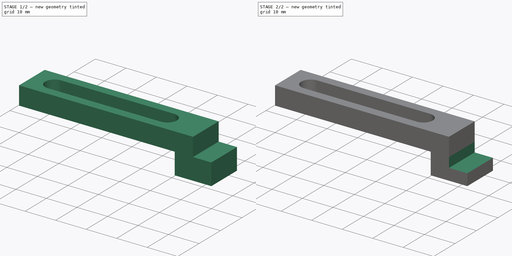
[diagram: build sequence overview — one tinted view per stage of 2, left to right]
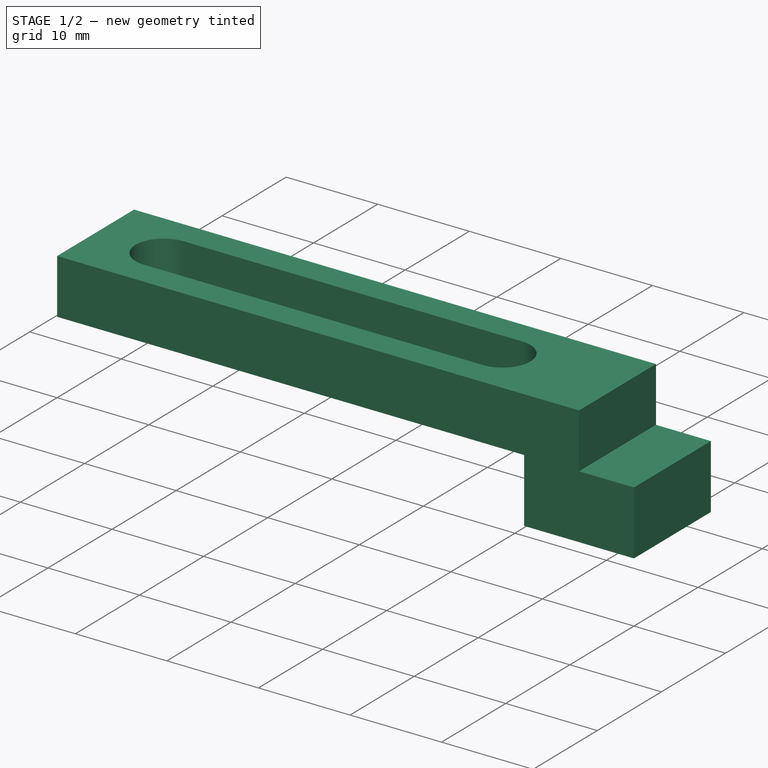
[diagram: stage 1 of 2 — iso view after this stage's code; geometry added in this stage tinted green]
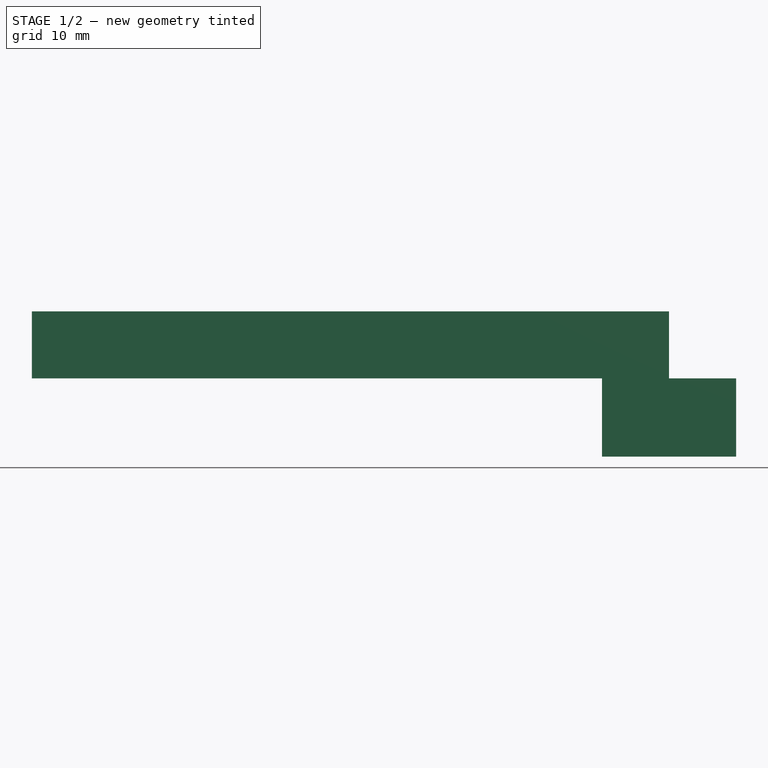
[diagram: stage 1 of 2 — front view after this stage's code; geometry added in this stage tinted green]
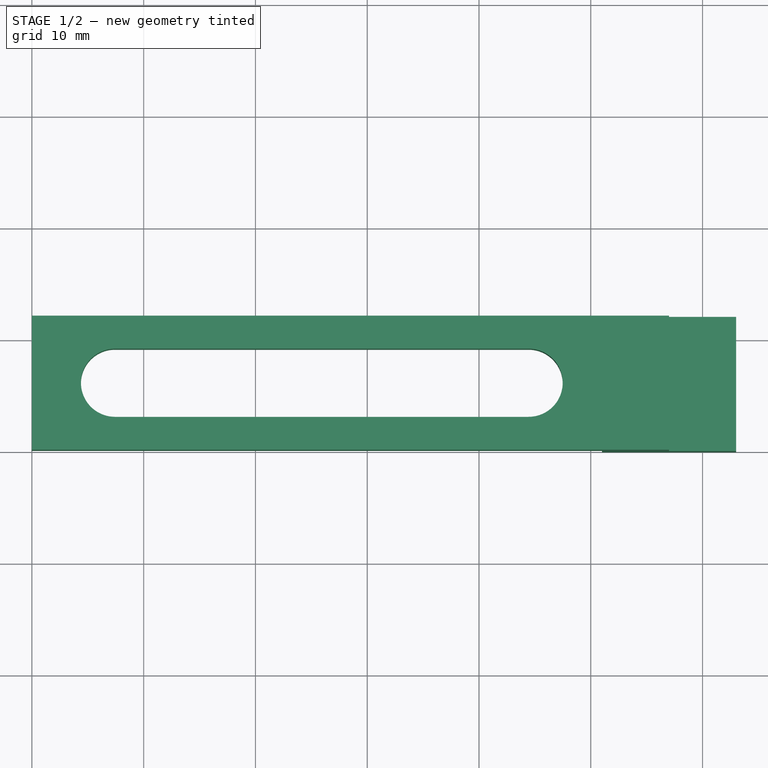
[diagram: stage 1 of 2 — top view after this stage's code; geometry added in this stage tinted green]
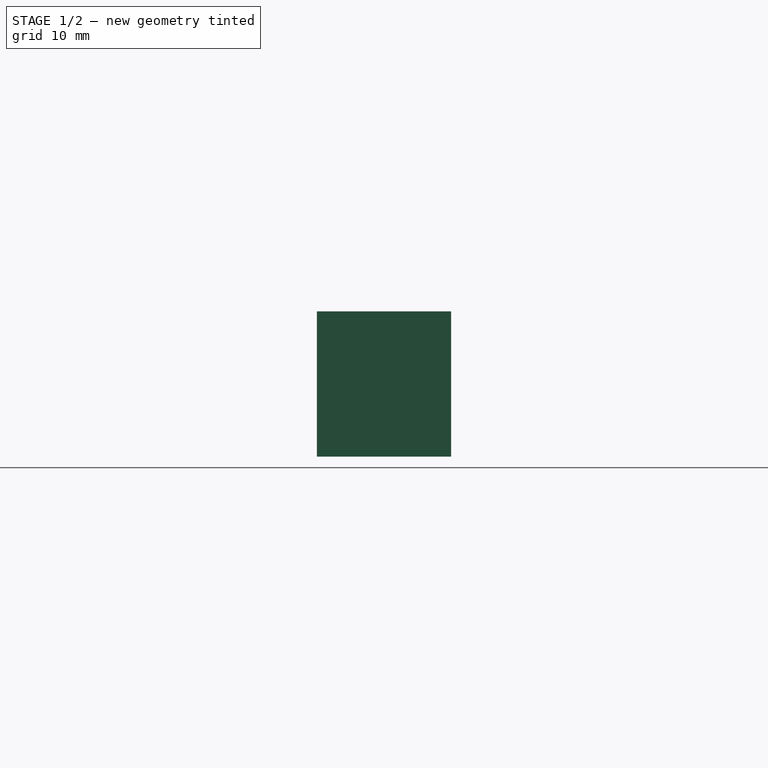
[diagram: stage 1 of 2 — right view after this stage's code; geometry added in this stage tinted green]
FCSTD DOCUMENT  (FreeCAD 0.21R33694 (Git))
Label: side_guide
License: All rights reserved
LicenseURL: http://en.wikipedia.org/wiki/All_rights_reserved
objects: Sketcher::SketchObject×1, PartDesign::Pad×1, PartDesign::AdditiveBox×1, PartDesign::SubtractiveBox×1, PartDesign::Body×1
note: 8 computed .brp shape members not serialized (recipe doc carries the construction recipe); baked Part::Feature solids carry a one-line shape summary decoded from their .brp

FEATURE [Sketcher::SketchObject] Sketch
  FullyConstrained = true
  MapMode = 5
  Support = -> [XY_Plane]
  expr: Constraints[21] = 37
  expr: Constraints[9] = 57 mm
  sketch-geometry (8):
    g0: LineSegment StartX=0 StartY=0 StartZ=0 EndX=57 EndY=0 EndZ=0
    g1: LineSegment StartX=57 StartY=0 StartZ=0 EndX=57 EndY=12 EndZ=0
    g2: LineSegment StartX=57 StartY=12 StartZ=0 EndX=0 EndY=12 EndZ=0
    g3: LineSegment StartX=0 StartY=12 StartZ=0 EndX=0 EndY=0 EndZ=0
    g4: LineSegment StartX=44.4362 StartY=9.05 StartZ=0 EndX=7.43623 EndY=9.05 EndZ=0
    g5: ArcOfCircle CenterX=7.43623 CenterY=6 CenterZ=0 NormalX=0 NormalY=0 NormalZ=1 AngleXU=0 Radius=3.05 StartAngle=1.5708 EndAngle=4.71239
    g6: LineSegment StartX=7.43623 StartY=2.95 StartZ=0 EndX=44.4362 EndY=2.95 EndZ=0
    g7: ArcOfCircle CenterX=44.4362 CenterY=6 CenterZ=0 NormalX=0 NormalY=0 NormalZ=1 AngleXU=0 Radius=3.05 StartAngle=4.71239 EndAngle=7.85398
  constraints (23):
    c: Coincident(g0,g1)
    c: Coincident(g1,g2)
    c: Coincident(g2,g3)
    c: Coincident(g3,g0)
    c: Horizontal(g0)
    c: Horizontal(g2)
    c: Vertical(g1)
    c: Vertical(g3)
    c: Coincident(g0,g-1)
    c: DistanceX(g2,g2) = 57
    c: DistanceY(g1,g1) = 12
    c: Horizontal(g4)
    c: Tangent(g4,g5) = -1.5708
    c: Coincident(g5,g6)
    c: Horizontal(g6)
    c: Tangent(g6,g7) = -1.5708
    c: Coincident(g7,g4)
    c: Equal(g4,g6)
    c: Distance(g2,g4) = 8
    c: Distance(g0,g5) = 8
    c: Distance(g4,g5) = 6.1
    c: DistanceX(g4,g4) = 37
    c: Vertical(g4,g5)
FEATURE [PartDesign::Pad] Pad
  Direction = (0,0,1)
  Length = 6
  Length2 = 10
  Profile = -> Sketch
  ReferenceAxis = -> Sketch [N_Axis]
  Type = 0
FEATURE [PartDesign::AdditiveBox] Box
  AttacherType = Attacher::AttachEngine3D
  AttachmentOffset = pos=(0,0,-6) rot=(1,0,0;1.5708rad)
  BaseFeature = -> Pad
  Height = 7
  Length = 12
  MapMode = 5
  Placement = pos=(51,0,0) rot=(0.707107,0.707107,0;3.14159rad)
  Support = -> [Pad]
  Width = 12
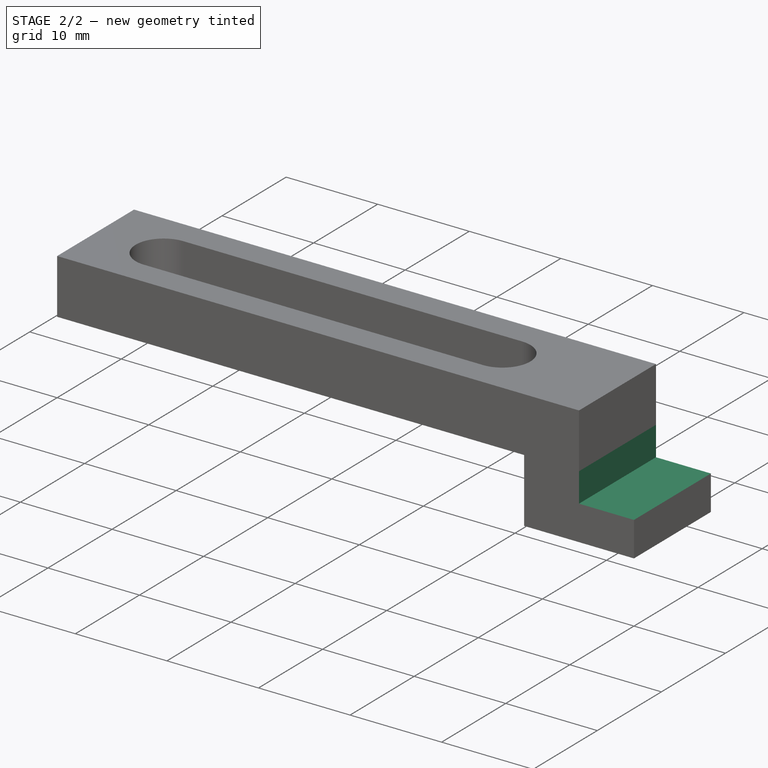
[diagram: stage 2 of 2 — iso view after this stage's code; geometry added in this stage tinted green]
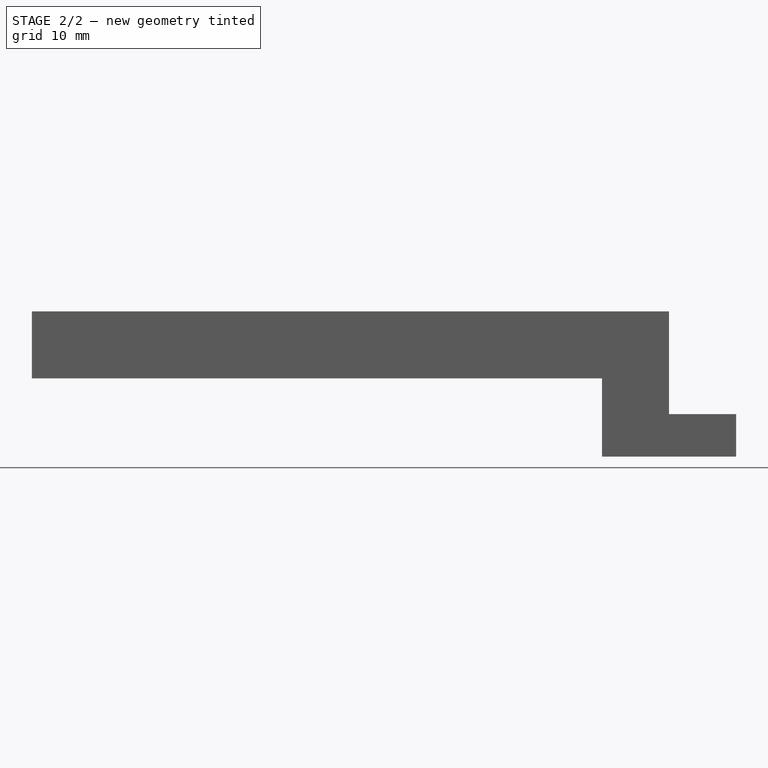
[diagram: stage 2 of 2 — front view after this stage's code; geometry added in this stage tinted green]
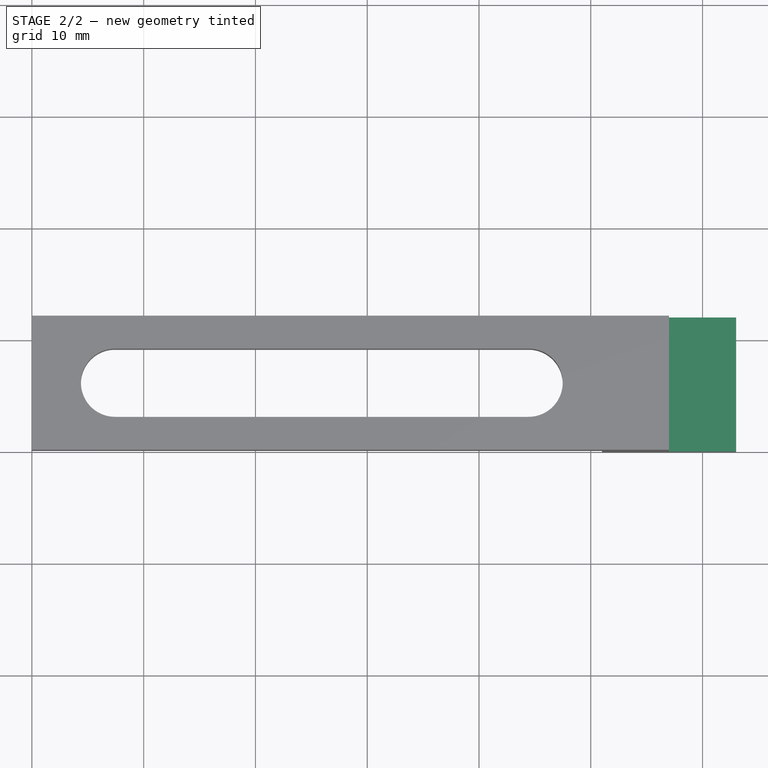
[diagram: stage 2 of 2 — top view after this stage's code; geometry added in this stage tinted green]
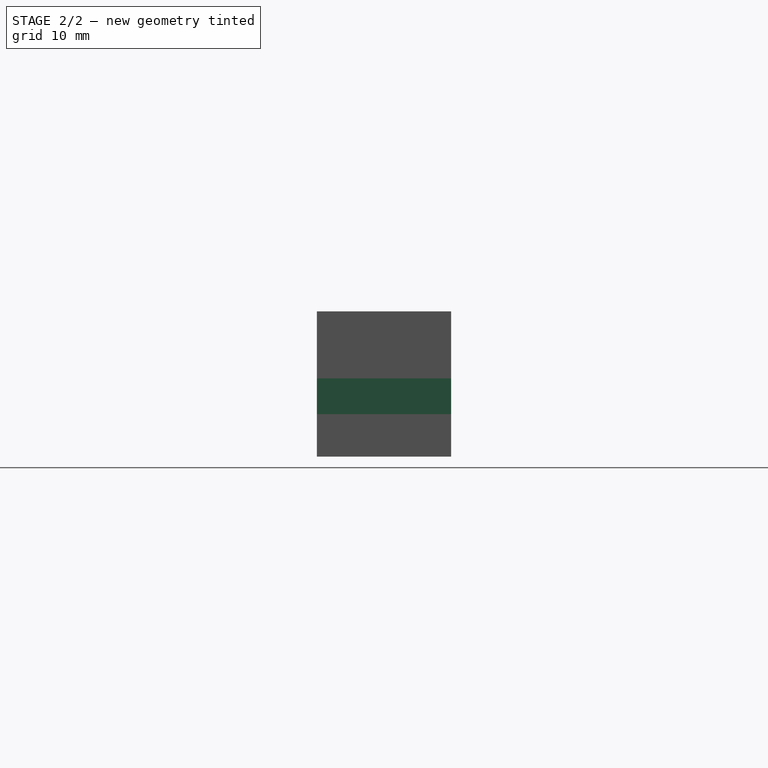
[diagram: stage 2 of 2 — right view after this stage's code; geometry added in this stage tinted green]
FEATURE [PartDesign::SubtractiveBox] Box001
  AttacherType = Attacher::AttachEngine3D
  AttachmentOffset = pos=(0,6,-7) rot=(0,0,1;0rad)
  BaseFeature = -> Box
  Height = 3.2
  Length = 12
  MapMode = 5
  Placement = pos=(57,1.3e-15,-9e-16) rot=(0.707107,0.707107,0;3.14159rad)
  Support = -> [Box]
  Width = 6
FEATURE [PartDesign::Body] Body
  Group = -> [Sketch,Pad,Box,Box001]
  Origin = -> Origin
  Tip = -> Box001
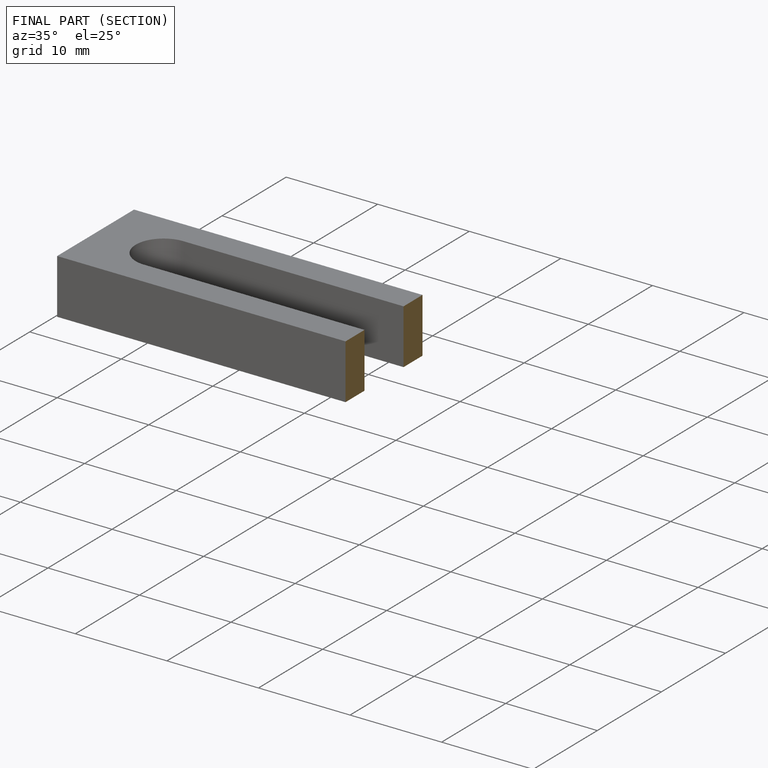
[diagram: finished part — half-section view (interior)]
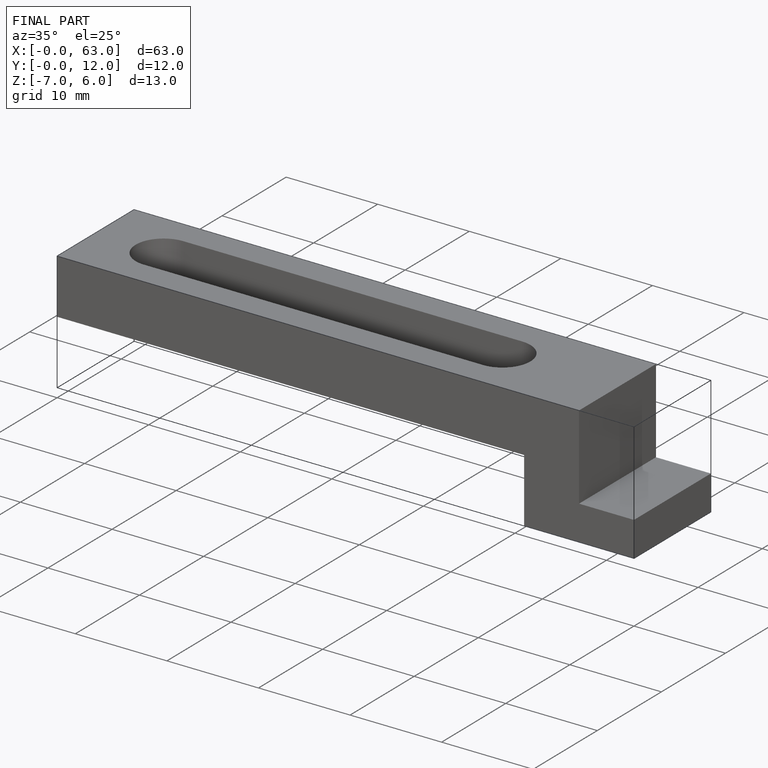
[diagram: finished part — iso view with bounding-box wireframe]
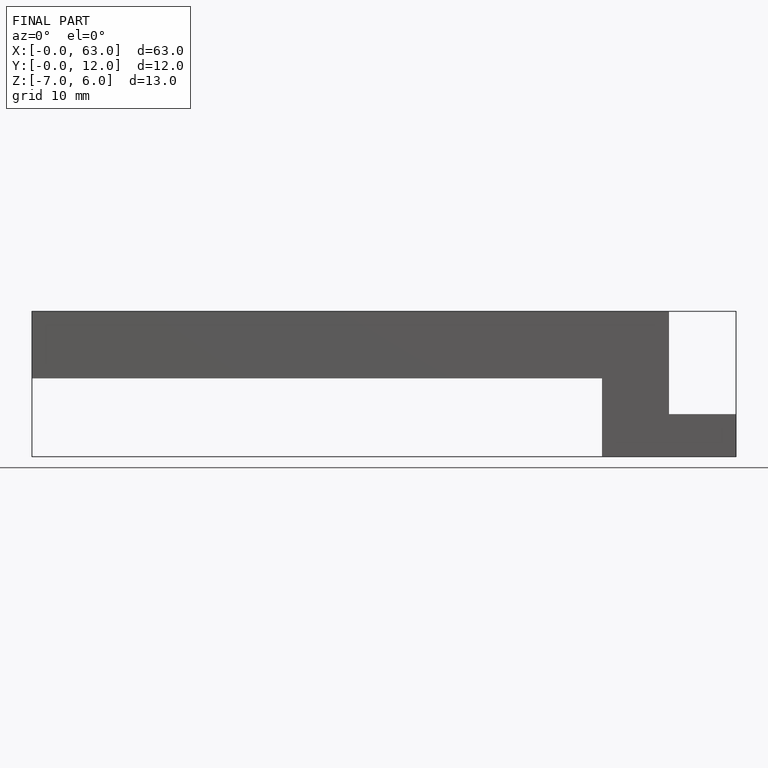
[diagram: finished part — front view with bounding-box wireframe]
